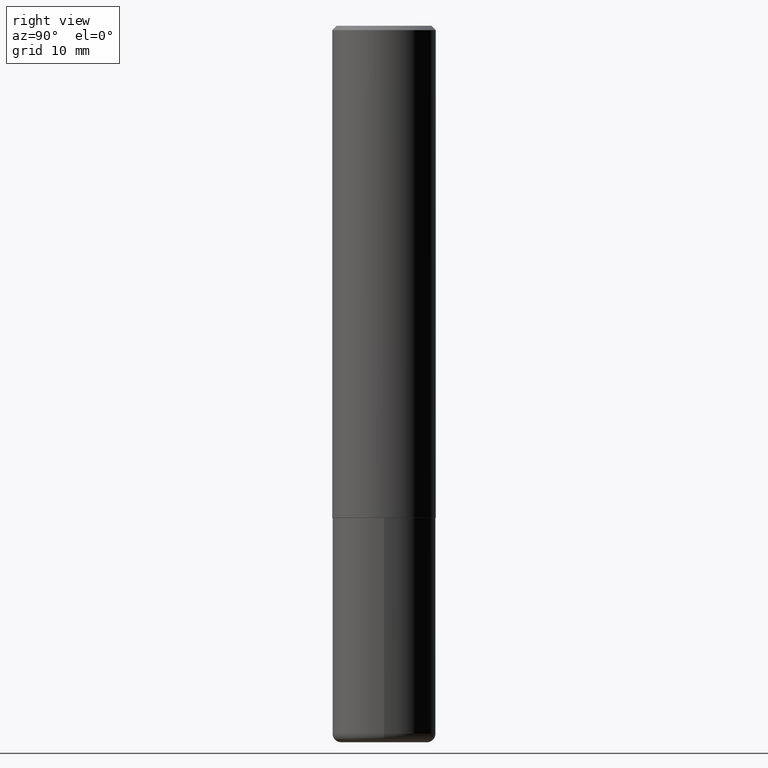
[diagram: clean part render]
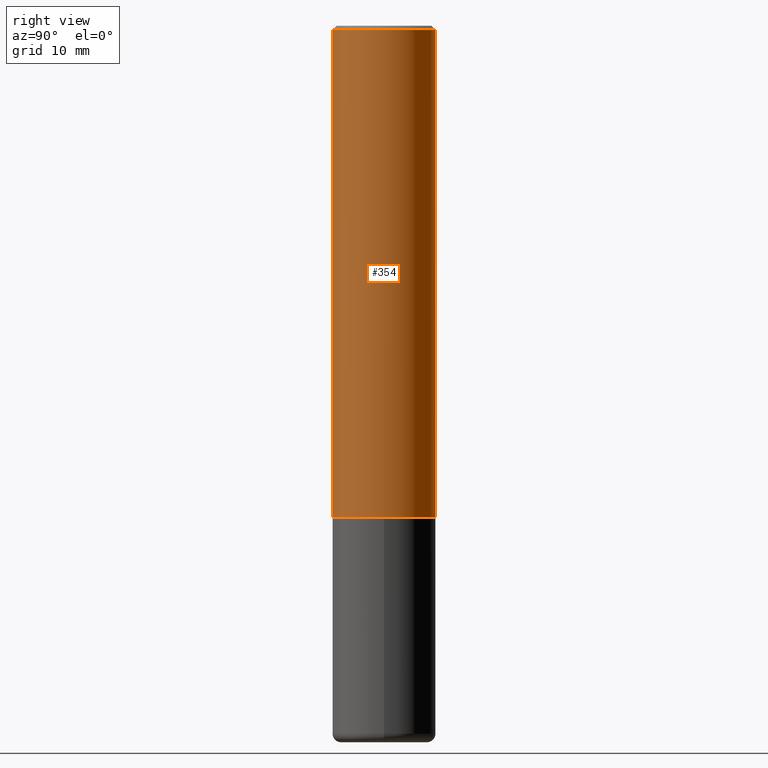
[diagram: same view with one face highlighted and labeled with its STEP entity id]
A machine part, right view. The second image highlights one B-rep face of the part: STEP entity #354.
In plain terms, the highlighted cylindrical surface (partial cylindrical patch) has radius 5.9995 mm, axis along (-0, 0, 1).
Its self-contained STEP definition (entity closure, byte-faithful):
#13 = CARTESIAN_POINT ( 'NONE',  ( 1.649375784469496525E-15, 0.2361999999999999378, -0.02000000000000091288 ) ) ;
#20 = EDGE_CURVE ( 'NONE', #151, #363, #359, .T. ) ;
#37 = EDGE_CURVE ( 'NONE', #138, #151, #50, .T. ) ;
#38 = FACE_OUTER_BOUND ( 'NONE', #410, .T. ) ;
#43 = DIRECTION ( 'NONE',  ( -6.982962677686265922E-15, -1.000000000000000000, 3.494732472144603410E-15 ) ) ;
#50 = LINE ( 'NONE', #185, #250 ) ;
#57 = EDGE_CURVE ( 'NONE', #138, #303, #328, .T. ) ;
#58 = CARTESIAN_POINT ( 'NONE',  ( 1.678301941865357380E-15, 0.2362000000000001321, -8.254558099205557624E-16 ) ) ;
#128 = AXIS2_PLACEMENT_3D ( 'NONE', #279, #298, #43 ) ;
#138 = VERTEX_POINT ( 'NONE', #231 ) ;
#146 = DIRECTION ( 'NONE',  ( -2.443198551934710321E-29, 3.494732472144603016E-15, 1.000000000000000000 ) ) ;
#151 = VERTEX_POINT ( 'NONE', #351 ) ;
#159 = AXIS2_PLACEMENT_3D ( 'NONE', #209, #387, #309 ) ;
#160 = DIRECTION ( 'NONE',  ( -2.443198551934710321E-29, 3.494732472144603016E-15, 1.000000000000000000 ) ) ;
#175 = CYLINDRICAL_SURFACE ( 'NONE', #128, 0.2362000000000001321 ) ;
#179 = VECTOR ( 'NONE', #160, 39.37007874015748143 ) ;
#185 = CARTESIAN_POINT ( 'NONE',  ( -1.649375784469496920E-15, -0.2362000000000001321, 8.254558099205557624E-16 ) ) ;
#189 = ORIENTED_EDGE ( 'NONE', *, *, #57, .T. ) ;
#192 = DIRECTION ( 'NONE',  ( -6.982962677686265922E-15, -1.000000000000000000, 3.469747663417773058E-15 ) ) ;
#194 = AXIS2_PLACEMENT_3D ( 'NONE', #214, #280, #192 ) ;
#204 = EDGE_CURVE ( 'NONE', #303, #363, #219, .T. ) ;
#209 = CARTESIAN_POINT ( 'NONE',  ( 4.886397103869442398E-31, -6.989464944289237832E-17, -0.02000000000000009062 ) ) ;
#214 = CARTESIAN_POINT ( 'NONE',  ( 5.480338671844748839E-29, -7.839034408267561952E-15, -2.243100000000000094 ) ) ;
#219 = LINE ( 'NONE', #58, #179 ) ;
#224 = ORIENTED_EDGE ( 'NONE', *, *, #20, .F. ) ;
#231 = CARTESIAN_POINT ( 'NONE',  ( -1.649375784469443080E-15, -0.2362000000000081257, -2.243099999999999206 ) ) ;
#250 = VECTOR ( 'NONE', #146, 39.37007874015748143 ) ;
#271 = CARTESIAN_POINT ( 'NONE',  ( 1.678301941865385582E-15, 0.2361999999999924160, -2.243100000000000982 ) ) ;
#279 = CARTESIAN_POINT ( 'NONE',  ( 0.000000000000000000, 0.000000000000000000, 0.000000000000000000 ) ) ;
#280 = DIRECTION ( 'NONE',  ( -2.443198551934710321E-29, 3.494732472144603410E-15, 1.000000000000000000 ) ) ;
#298 = DIRECTION ( 'NONE',  ( -2.443198551934710321E-29, 3.494732472144603410E-15, 1.000000000000000000 ) ) ;
#303 = VERTEX_POINT ( 'NONE', #271 ) ;
#306 = ORIENTED_EDGE ( 'NONE', *, *, #37, .F. ) ;
#309 = DIRECTION ( 'NONE',  ( -6.982962677686265922E-15, -1.000000000000000000, 3.487819265831411744E-15 ) ) ;
#328 = CIRCLE ( 'NONE', #194, 0.2362000000000002709 ) ;
#351 = CARTESIAN_POINT ( 'NONE',  ( -1.620449627073635079E-15, -0.2362000000000000766, -0.01999999999999926489 ) ) ;
#354 = ADVANCED_FACE ( 'NONE', ( #38 ), #175, .T. ) ;
#359 = CIRCLE ( 'NONE', #159, 0.2361999999999999933 ) ;
#363 = VERTEX_POINT ( 'NONE', #13 ) ;
#387 = DIRECTION ( 'NONE',  ( -2.443198551934710321E-29, 3.494732472144603410E-15, 1.000000000000000000 ) ) ;
#394 = ORIENTED_EDGE ( 'NONE', *, *, #204, .T. ) ;
#410 = EDGE_LOOP ( 'NONE', ( #189, #394, #224, #306 ) ) ;